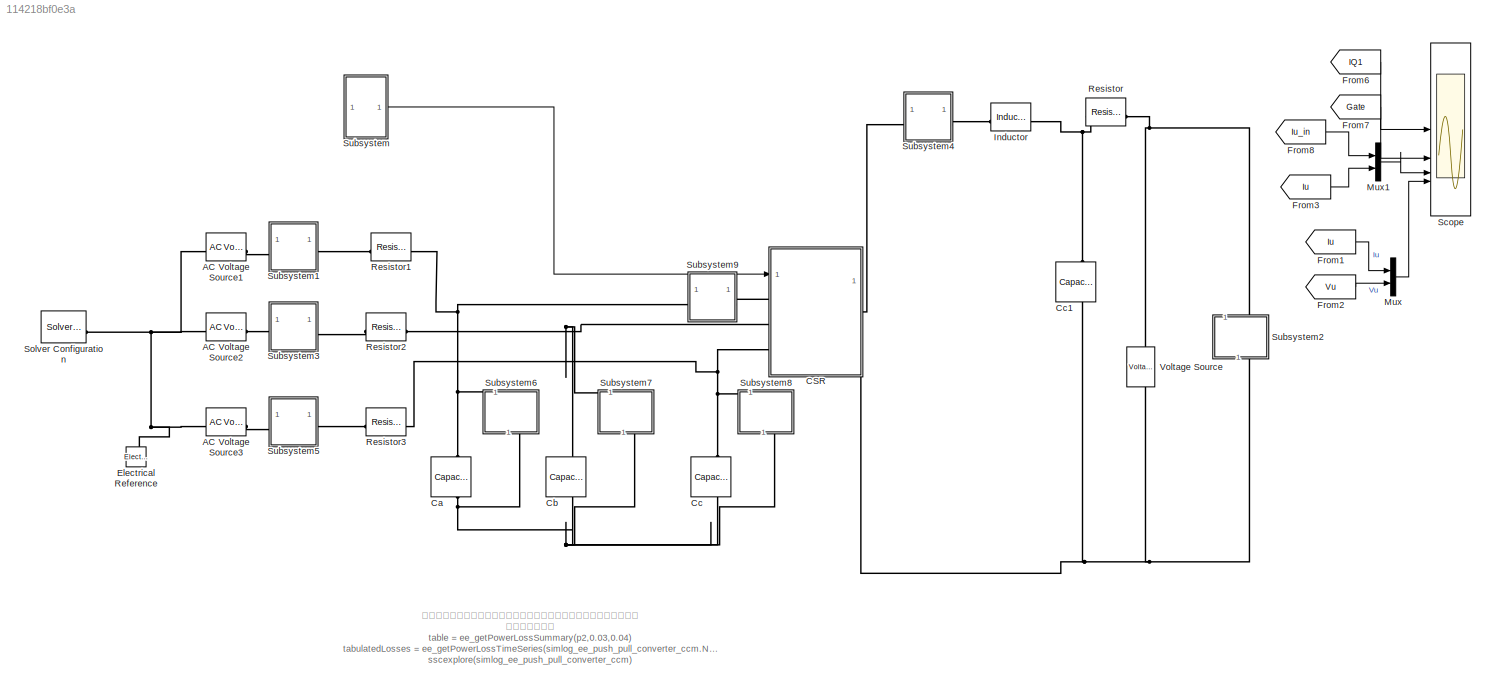
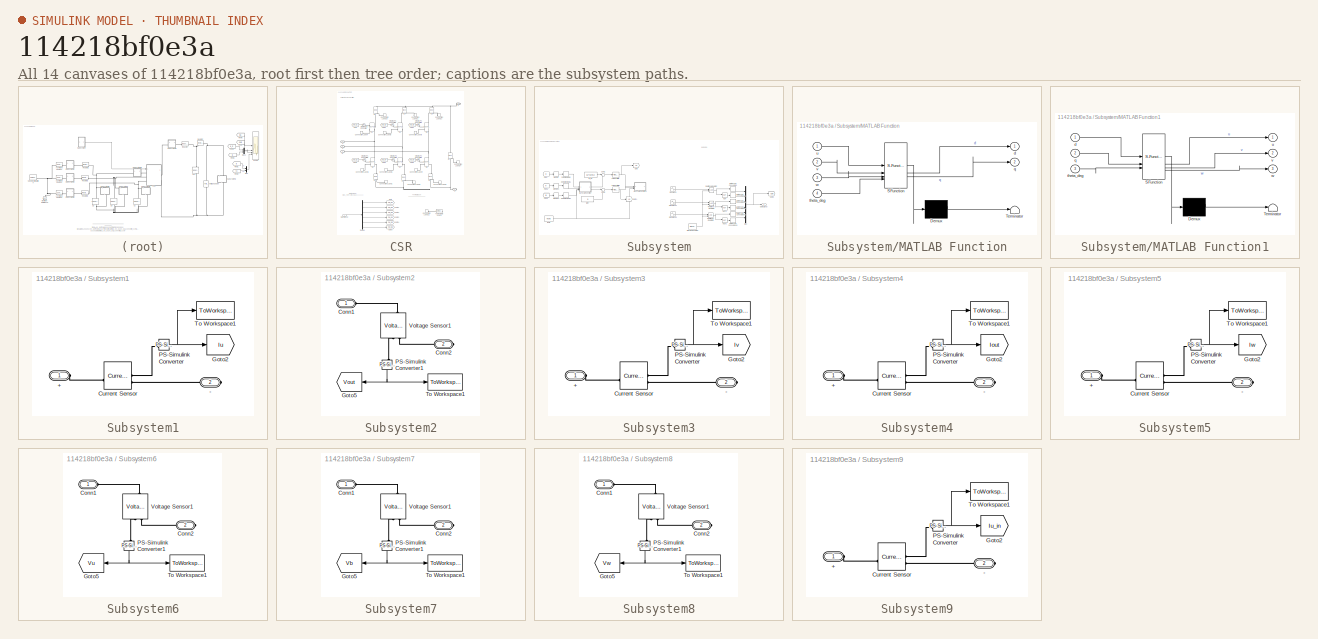
[diagram: thumbnail index - all 14 canvases of the model, root first then tree order]
MODEL slx_114218bf0e3a
KIND model
CONFIG AbsTol = 1e-3
CONFIG EnableMultiTasking = off
CONFIG FixedStep = 1e-9
CONFIG MaxStep = auto
CONFIG MinStep = auto
CONFIG RelTol = 1e-3
CONFIG SampleTimeConstraint = Unconstrained
CONFIG SolverName = ode23t
CONFIG StartTime = 0.0
CONFIG StopTime = 0.04
BLOCK [Reference] AC Voltage Source1  REF=fl_lib/Electrical/Electrical Sources/AC Voltage Source
  AttributesFormatString = %<amp> V\n%<frequency> Hz\n%<shift> deg
  SourceBlock = fl_lib/Electrical/Electrical Sources/AC Voltage Source
  SourceType = AC Voltage Source
BLOCK [Reference] AC Voltage Source2  REF=fl_lib/Electrical/Electrical Sources/AC Voltage Source
  AttributesFormatString = %<amp> V\n%<frequency> Hz\n%<shift> deg
  SourceBlock = fl_lib/Electrical/Electrical Sources/AC Voltage Source
  SourceType = AC Voltage Source
BLOCK [Reference] AC Voltage Source3  REF=fl_lib/Electrical/Electrical Sources/AC Voltage Source
  AttributesFormatString = %<amp> V\n%<frequency> Hz\n%<shift> deg
  SourceBlock = fl_lib/Electrical/Electrical Sources/AC Voltage Source
  SourceType = AC Voltage Source
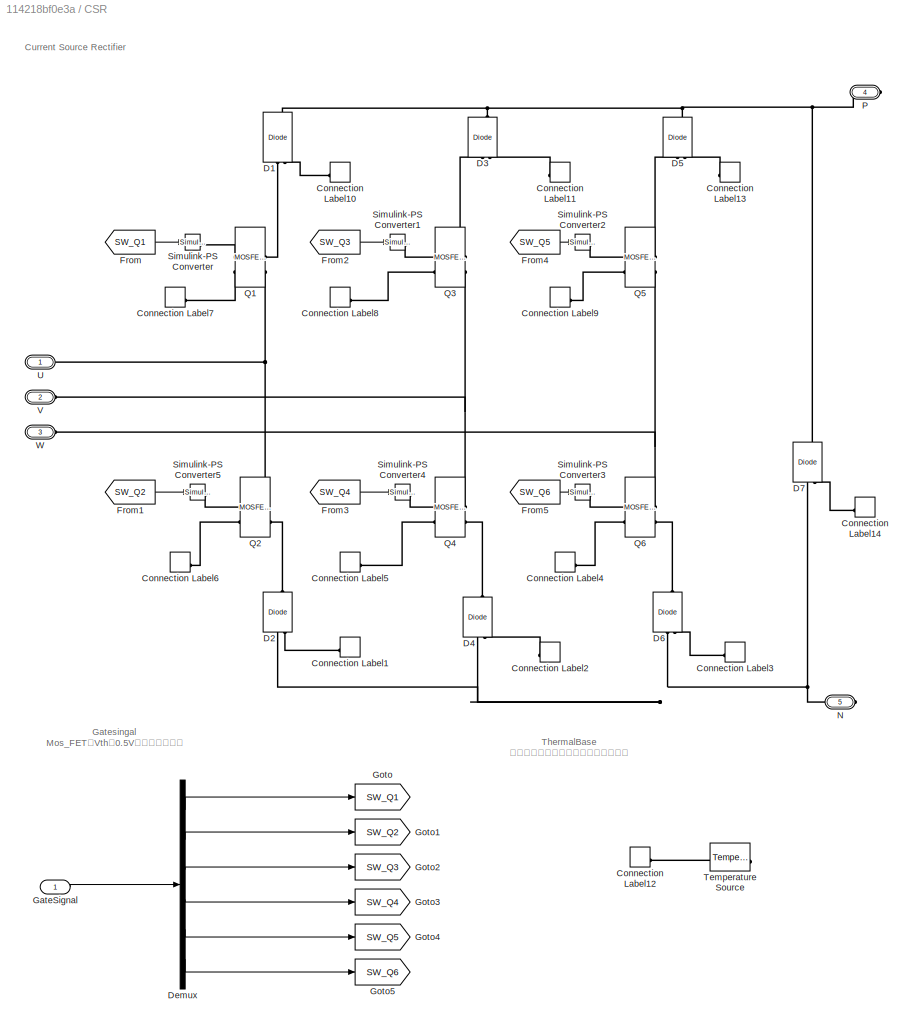
BLOCK [SubSystem] CSR
BLOCK [ConnectionLabel] CSR/Connection Label1
  Label = heatSink
BLOCK [ConnectionLabel] CSR/Connection Label10
  Label = heatSink
BLOCK [ConnectionLabel] CSR/Connection Label11
  Label = heatSink
BLOCK [ConnectionLabel] CSR/Connection Label12
  Label = heatSink
  NameLocation = top
BLOCK [ConnectionLabel] CSR/Connection Label13
  Label = heatSink
BLOCK [ConnectionLabel] CSR/Connection Label14
  Label = heatSink
BLOCK [ConnectionLabel] CSR/Connection Label2
  Label = heatSink
BLOCK [ConnectionLabel] CSR/Connection Label3
  Label = heatSink
BLOCK [ConnectionLabel] CSR/Connection Label4
  Label = heatSink
  NameLocation = top
BLOCK [ConnectionLabel] CSR/Connection Label5
  Label = heatSink
  NameLocation = top
BLOCK [ConnectionLabel] CSR/Connection Label6
  Label = heatSink
  NameLocation = top
BLOCK [ConnectionLabel] CSR/Connection Label7
  Label = heatSink
  NameLocation = top
BLOCK [ConnectionLabel] CSR/Connection Label8
  Label = heatSink
  NameLocation = top
BLOCK [ConnectionLabel] CSR/Connection Label9
  Label = heatSink
  NameLocation = top
BLOCK [Reference] CSR/D1  REF=ee_lib/Semiconductors &
Converters/Diode
  NameLocation = right
  SourceBlock = ee_lib/Semiconductors &\nConverters/Diode
  SourceType = Diode
BLOCK [Reference] CSR/D2  REF=ee_lib/Semiconductors &
Converters/Diode
  NameLocation = right
  SourceBlock = ee_lib/Semiconductors &\nConverters/Diode
  SourceType = Diode
BLOCK [Reference] CSR/D3  REF=ee_lib/Semiconductors &
Converters/Diode
  NameLocation = right
  SourceBlock = ee_lib/Semiconductors &\nConverters/Diode
  SourceType = Diode
BLOCK [Reference] CSR/D4  REF=ee_lib/Semiconductors &
Converters/Diode
  NameLocation = right
  SourceBlock = ee_lib/Semiconductors &\nConverters/Diode
  SourceType = Diode
BLOCK [Reference] CSR/D5  REF=ee_lib/Semiconductors &
Converters/Diode
  NameLocation = right
  SourceBlock = ee_lib/Semiconductors &\nConverters/Diode
  SourceType = Diode
BLOCK [Reference] CSR/D6  REF=ee_lib/Semiconductors &
Converters/Diode
  NameLocation = right
  SourceBlock = ee_lib/Semiconductors &\nConverters/Diode
  SourceType = Diode
BLOCK [Reference] CSR/D7  REF=ee_lib/Semiconductors &
Converters/Diode
  NameLocation = right
  SourceBlock = ee_lib/Semiconductors &\nConverters/Diode
  SourceType = Diode
BLOCK [Demux] CSR/Demux
  Outputs = 6
BLOCK [From] CSR/From
  GotoTag = SW_Q1
BLOCK [From] CSR/From1
  GotoTag = SW_Q2
BLOCK [From] CSR/From2
  GotoTag = SW_Q3
BLOCK [From] CSR/From3
  GotoTag = SW_Q4
BLOCK [From] CSR/From4
  GotoTag = SW_Q5
BLOCK [From] CSR/From5
  GotoTag = SW_Q6
BLOCK [Inport] CSR/GateSignal
BLOCK [Goto] CSR/Goto
  GotoTag = SW_Q1
BLOCK [Goto] CSR/Goto1
  GotoTag = SW_Q2
BLOCK [Goto] CSR/Goto2
  GotoTag = SW_Q3
BLOCK [Goto] CSR/Goto3
  GotoTag = SW_Q4
BLOCK [Goto] CSR/Goto4
  GotoTag = SW_Q5
BLOCK [Goto] CSR/Goto5
  GotoTag = SW_Q6
BLOCK [PMIOPort] CSR/N
  NameLocation = top
  Port = 5
  Side = Right
BLOCK [PMIOPort] CSR/P
  Port = 4
  Side = Right
BLOCK [Reference] CSR/Q1  REF=ee_lib/Semiconductors &
Converters/MOSFET
(Ideal,
Switching)
  SourceBlock = ee_lib/Semiconductors &\nConverters/MOSFET\n(Ideal,\nSwitching)
  SourceType = MOSFET\n(Ideal,\nSwitching)
BLOCK [Reference] CSR/Q2  REF=ee_lib/Semiconductors &
Converters/MOSFET
(Ideal,
Switching)
  SourceBlock = ee_lib/Semiconductors &\nConverters/MOSFET\n(Ideal,\nSwitching)
  SourceType = MOSFET\n(Ideal,\nSwitching)
BLOCK [Reference] CSR/Q3  REF=ee_lib/Semiconductors &
Converters/MOSFET
(Ideal,
Switching)
  SourceBlock = ee_lib/Semiconductors &\nConverters/MOSFET\n(Ideal,\nSwitching)
  SourceType = MOSFET\n(Ideal,\nSwitching)
BLOCK [Reference] CSR/Q4  REF=ee_lib/Semiconductors &
Converters/MOSFET
(Ideal,
Switching)
  SourceBlock = ee_lib/Semiconductors &\nConverters/MOSFET\n(Ideal,\nSwitching)
  SourceType = MOSFET\n(Ideal,\nSwitching)
BLOCK [Reference] CSR/Q5  REF=ee_lib/Semiconductors &
Converters/MOSFET
(Ideal,
Switching)
  SourceBlock = ee_lib/Semiconductors &\nConverters/MOSFET\n(Ideal,\nSwitching)
  SourceType = MOSFET\n(Ideal,\nSwitching)
BLOCK [Reference] CSR/Q6  REF=ee_lib/Semiconductors &
Converters/MOSFET
(Ideal,
Switching)
  SourceBlock = ee_lib/Semiconductors &\nConverters/MOSFET\n(Ideal,\nSwitching)
  SourceType = MOSFET\n(Ideal,\nSwitching)
BLOCK [Reference] CSR/Simulink-PS Converter  REF=nesl_utility/Simulink-PS
Converter
  SourceBlock = nesl_utility/Simulink-PS\nConverter
  SourceType = Simulink-PS\nConverter
BLOCK [Reference] CSR/Simulink-PS Converter1  REF=nesl_utility/Simulink-PS
Converter
  SourceBlock = nesl_utility/Simulink-PS\nConverter
  SourceType = Simulink-PS\nConverter
BLOCK [Reference] CSR/Simulink-PS Converter2  REF=nesl_utility/Simulink-PS
Converter
  SourceBlock = nesl_utility/Simulink-PS\nConverter
  SourceType = Simulink-PS\nConverter
BLOCK [Reference] CSR/Simulink-PS Converter3  REF=nesl_utility/Simulink-PS
Converter
  SourceBlock = nesl_utility/Simulink-PS\nConverter
  SourceType = Simulink-PS\nConverter
BLOCK [Reference] CSR/Simulink-PS Converter4  REF=nesl_utility/Simulink-PS
Converter
  SourceBlock = nesl_utility/Simulink-PS\nConverter
  SourceType = Simulink-PS\nConverter
BLOCK [Reference] CSR/Simulink-PS Converter5  REF=nesl_utility/Simulink-PS
Converter
  SourceBlock = nesl_utility/Simulink-PS\nConverter
  SourceType = Simulink-PS\nConverter
BLOCK [Reference] CSR/Temperature Source  REF=fl_lib/Thermal/Thermal Sources/Temperature Source
  AttributesFormatString = %<temperature> degC
  NameLocation = top
  SourceBlock = fl_lib/Thermal/Thermal Sources/Temperature Source
  SourceType = Temperature Source
BLOCK [PMIOPort] CSR/U
  Side = Left
BLOCK [PMIOPort] CSR/V
  Port = 2
  Side = Left
BLOCK [PMIOPort] CSR/W
  Port = 3
  Side = Left
BLOCK [Reference] Ca  REF=fl_lib/Electrical/Electrical Elements/Capacitor
  AttributesFormatString = %<c> F
  NameLocation = left
  SourceBlock = fl_lib/Electrical/Electrical Elements/Capacitor
  SourceType = Capacitor
BLOCK [Reference] Cb  REF=fl_lib/Electrical/Electrical Elements/Capacitor
  AttributesFormatString = %<c> F
  NameLocation = left
  SourceBlock = fl_lib/Electrical/Electrical Elements/Capacitor
  SourceType = Capacitor
BLOCK [Reference] Cc  REF=fl_lib/Electrical/Electrical Elements/Capacitor
  AttributesFormatString = %<c> F
  NameLocation = left
  SourceBlock = fl_lib/Electrical/Electrical Elements/Capacitor
  SourceType = Capacitor
BLOCK [Reference] Cc1  REF=fl_lib/Electrical/Electrical Elements/Capacitor
  AttributesFormatString = %<c> F
  NameLocation = left
  SourceBlock = fl_lib/Electrical/Electrical Elements/Capacitor
  SourceType = Capacitor
BLOCK [Reference] Electrical Reference  REF=fl_lib/Electrical/Electrical Elements/Electrical Reference
  NameLocation = right
  SourceBlock = fl_lib/Electrical/Electrical Elements/Electrical Reference
  SourceType = Electrical Reference
BLOCK [From] From1
  GotoTag = Iu
  TagVisibility = global
BLOCK [From] From2
  GotoTag = Vu
  TagVisibility = global
BLOCK [From] From3
  GotoTag = Iu
  TagVisibility = global
BLOCK [From] From6
  GotoTag = IQ1
BLOCK [From] From7
  GotoTag = Gate
  TagVisibility = global
BLOCK [From] From8
  GotoTag = Iu_in
  TagVisibility = global
BLOCK [Reference] Inductor  REF=ee_lib/Passive/Inductor
  AttributesFormatString = %<l> H
  SourceBlock = ee_lib/Passive/Inductor
  SourceType = Inductor
BLOCK [Mux] Mux
  DisplayOption = bar
  Inputs = 2
BLOCK [Mux] Mux1
  DisplayOption = bar
  Inputs = 2
BLOCK [Reference] Resistor  REF=fl_lib/Electrical/Electrical Elements/Resistor
  SourceBlock = fl_lib/Electrical/Electrical Elements/Resistor
  SourceType = Resistor
BLOCK [Reference] Resistor1  REF=fl_lib/Electrical/Electrical Elements/Resistor
  SourceBlock = fl_lib/Electrical/Electrical Elements/Resistor
  SourceType = Resistor
BLOCK [Reference] Resistor2  REF=fl_lib/Electrical/Electrical Elements/Resistor
  SourceBlock = fl_lib/Electrical/Electrical Elements/Resistor
  SourceType = Resistor
BLOCK [Reference] Resistor3  REF=fl_lib/Electrical/Electrical Elements/Resistor
  SourceBlock = fl_lib/Electrical/Electrical Elements/Resistor
  SourceType = Resistor
BLOCK [Scope] Scope
  Floating = off
  NumInputPorts = 4
  ScopeSpecificationString = Simulink.scopes.TimeScopeBlockCfg('CurrentConfiguration', extmgr.ConfigurationSet(extmgr.Configuration('Core','General UI',true),extmgr.Configuration('Core','Source UI',true),extmgr.Configuration('Sources','WiredSimulink',true),extmgr.Configuration('Visuals','Time Domain',true,'SerializedDisplays',{struct('MinYLimReal','-1.00000','MaxYLimReal','1.00000','YLabelReal','','MinYLimMag','0.00000','MaxY...<+3587ch>
BLOCK [Reference] Solver Configuration  REF=nesl_utility/Solver
Configuration
  SourceBlock = nesl_utility/Solver\nConfiguration
  SourceType = Solver\nConfiguration
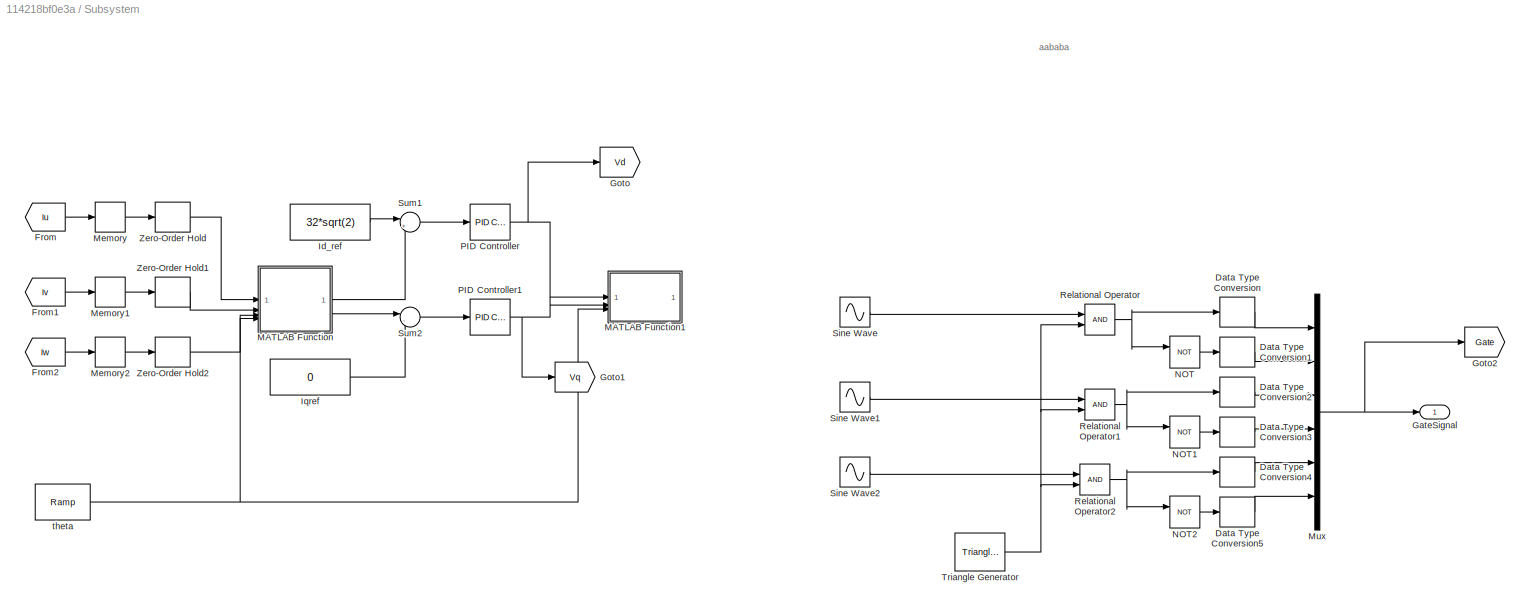
BLOCK [SubSystem] Subsystem
BLOCK [DataTypeConversion] Subsystem/Data Type Conversion
  RndMeth = Floor
  SaturateOnIntegerOverflow = off
BLOCK [DataTypeConversion] Subsystem/Data Type Conversion1
  RndMeth = Floor
  SaturateOnIntegerOverflow = off
BLOCK [DataTypeConversion] Subsystem/Data Type Conversion2
  RndMeth = Floor
  SaturateOnIntegerOverflow = off
BLOCK [DataTypeConversion] Subsystem/Data Type Conversion3
  RndMeth = Floor
  SaturateOnIntegerOverflow = off
BLOCK [DataTypeConversion] Subsystem/Data Type Conversion4
  RndMeth = Floor
  SaturateOnIntegerOverflow = off
BLOCK [DataTypeConversion] Subsystem/Data Type Conversion5
  RndMeth = Floor
  SaturateOnIntegerOverflow = off
BLOCK [From] Subsystem/From
  Commented = on
  GotoTag = Iu
  TagVisibility = global
BLOCK [From] Subsystem/From1
  Commented = on
  GotoTag = Iv
  TagVisibility = global
BLOCK [From] Subsystem/From2
  Commented = on
  GotoTag = Iw
  TagVisibility = global
BLOCK [Outport] Subsystem/GateSignal
BLOCK [Goto] Subsystem/Goto
  Commented = on
  GotoTag = Vd
  TagVisibility = global
BLOCK [Goto] Subsystem/Goto1
  Commented = on
  GotoTag = Vq
  TagVisibility = global
BLOCK [Goto] Subsystem/Goto2
  GotoTag = Gate
  TagVisibility = global
BLOCK [Constant] Subsystem/Id_ref
  Commented = on
  Value = 32*sqrt(2)
BLOCK [Constant] Subsystem/Iqref
  Commented = on
  Value = 0
BLOCK [SubSystem] Subsystem/MATLAB Function
  Commented = on
  ErrorFcn = Stateflow.Translate.translate
  LibrarySourceBlock = simulink/User-Defined\nFunctions/MATLAB Function
  PermitHierarchicalResolution = ExplicitOnly
  SFBlockType = MATLAB Function
  TreatAsAtomicUnit = on
BLOCK [Demux] Subsystem/MATLAB Function/ Demux 
  Outputs = 1
BLOCK [S-Function] Subsystem/MATLAB Function/ SFunction 
  EnableBusSupport = on
  FunctionName = sf_sfun
  PortCounts = [4 3]
  SFcnIsStateOwnerBlock = off
  SFunctionDeploymentMode = off
  Tag = Stateflow S-Function 2
BLOCK [Terminator] Subsystem/MATLAB Function/ Terminator 
BLOCK [Outport] Subsystem/MATLAB Function/d
BLOCK [Outport] Subsystem/MATLAB Function/q
  Port = 2
BLOCK [Inport] Subsystem/MATLAB Function/theta_deg
  Port = 4
BLOCK [Inport] Subsystem/MATLAB Function/u
BLOCK [Inport] Subsystem/MATLAB Function/v
  Port = 2
BLOCK [Inport] Subsystem/MATLAB Function/w
  Port = 3
BLOCK [SubSystem] Subsystem/MATLAB Function1
  Commented = on
  ErrorFcn = Stateflow.Translate.translate
  LibrarySourceBlock = simulink/User-Defined\nFunctions/MATLAB Function
  PermitHierarchicalResolution = ExplicitOnly
  SFBlockType = MATLAB Function
  TreatAsAtomicUnit = on
BLOCK [Demux] Subsystem/MATLAB Function1/ Demux 
  Outputs = 1
BLOCK [S-Function] Subsystem/MATLAB Function1/ SFunction 
  EnableBusSupport = on
  FunctionName = sf_sfun
  PortCounts = [3 4]
  SFcnIsStateOwnerBlock = off
  SFunctionDeploymentMode = off
  Tag = Stateflow S-Function 1
BLOCK [Terminator] Subsystem/MATLAB Function1/ Terminator 
BLOCK [Inport] Subsystem/MATLAB Function1/d
BLOCK [Inport] Subsystem/MATLAB Function1/q
  Port = 2
BLOCK [Inport] Subsystem/MATLAB Function1/theta_deg
  Port = 3
BLOCK [Outport] Subsystem/MATLAB Function1/u
BLOCK [Outport] Subsystem/MATLAB Function1/v
  Port = 2
BLOCK [Outport] Subsystem/MATLAB Function1/w
  Port = 3
BLOCK [Memory] Subsystem/Memory
  Commented = on
BLOCK [Memory] Subsystem/Memory1
  Commented = on
BLOCK [Memory] Subsystem/Memory2
  Commented = on
BLOCK [Mux] Subsystem/Mux
  DisplayOption = bar
  Inputs = 6
BLOCK [Logic] Subsystem/NOT
  AllPortsSameDT = off
  IconShape = distinctive
  Operator = NOT
  OutDataTypeStr = boolean
BLOCK [Logic] Subsystem/NOT1
  AllPortsSameDT = off
  IconShape = distinctive
  Operator = NOT
  OutDataTypeStr = boolean
BLOCK [Logic] Subsystem/NOT2
  AllPortsSameDT = off
  IconShape = distinctive
  Operator = NOT
  OutDataTypeStr = boolean
BLOCK [Reference] Subsystem/PID Controller  REF=slpidlib/PID Controller
  Commented = on
  LibrarySourceBlock = simulink/Continuous/PID Controller
  SourceBlock = slpidlib/PID Controller
  SourceType = PID 1dof
BLOCK [Reference] Subsystem/PID Controller1  REF=slpidlib/PID Controller
  Commented = on
  LibrarySourceBlock = simulink/Continuous/PID Controller
  SourceBlock = slpidlib/PID Controller
  SourceType = PID 1dof
BLOCK [RelationalOperator] Subsystem/Relational Operator
  InputSameDT = off
  OutDataTypeStr = boolean
  RndMeth = Simplest
BLOCK [RelationalOperator] Subsystem/Relational Operator1
  InputSameDT = off
  OutDataTypeStr = boolean
  RndMeth = Simplest
BLOCK [RelationalOperator] Subsystem/Relational Operator2
  InputSameDT = off
  OutDataTypeStr = boolean
  RndMeth = Simplest
BLOCK [Sin] Subsystem/Sine Wave
  Amplitude = 0.8
  Frequency = 50*2*pi
  Phase = pi/2
  SampleTime = 0
BLOCK [Sin] Subsystem/Sine Wave1
  Amplitude = 0.8
  Frequency = 50*2*pi
  Phase = 2/3*pi+pi/2
  SampleTime = 0
BLOCK [Sin] Subsystem/Sine Wave2
  Amplitude = 0.8
  Frequency = 50*2*pi
  Phase = 4/3*pi+pi/2
  SampleTime = 0
BLOCK [Sum] Subsystem/Sum1
  Commented = on
  Inputs = |+-
BLOCK [Sum] Subsystem/Sum2
  Commented = on
  Inputs = |-+
  NameLocation = top
BLOCK [Reference] Subsystem/Triangle Generator  REF=spsTriangleGeneratorLib/Triangle
Generator
  LibrarySourceBlock = sps_lib/Sources/Signal Generator Sources/Triangle\nGenerator
  SourceBlock = spsTriangleGeneratorLib/Triangle\nGenerator
  SourceType = Triangle Generator
BLOCK [ZeroOrderHold] Subsystem/Zero-Order Hold
  AttributesFormatString = %<SampleTime> sec
  Commented = on
  SampleTime = 1/100e3
BLOCK [ZeroOrderHold] Subsystem/Zero-Order Hold1
  AttributesFormatString = %<SampleTime> sec
  Commented = on
  SampleTime = 1/100e3
BLOCK [ZeroOrderHold] Subsystem/Zero-Order Hold2
  AttributesFormatString = %<SampleTime> sec
  Commented = on
  SampleTime = 1/100e3
BLOCK [Reference] Subsystem/theta  REF=simulink/Sources/Ramp
  Commented = on
  SourceBlock = simulink/Sources/Ramp
  SourceType = Ramp
BLOCK [SubSystem] Subsystem1
  AttributesFormatString = %<VariableName>
BLOCK [PMIOPort] Subsystem1/+
  Side = Left
BLOCK [PMIOPort] Subsystem1/-
  Port = 2
  Side = Right
BLOCK [Reference] Subsystem1/Current Sensor  REF=fl_lib/Electrical/Electrical Sensors/Current Sensor
  SourceBlock = fl_lib/Electrical/Electrical Sensors/Current Sensor
  SourceType = Current Sensor
BLOCK [Goto] Subsystem1/Goto2
  GotoTag = Iu
  TagVisibility = global
BLOCK [Reference] Subsystem1/PS-Simulink Converter  REF=nesl_utility/PS-Simulink
Converter
  SourceBlock = nesl_utility/PS-Simulink\nConverter
  SourceType = PS-Simulink\nConverter
BLOCK [ToWorkspace] Subsystem1/To Workspace1
  FixptAsFi = on
  MaxDataPoints = inf
  SampleTime = SampleTime
  VariableName = Iu
BLOCK [SubSystem] Subsystem2
  AttributesFormatString = %<VariableName>
  NameLocation = left
BLOCK [PMIOPort] Subsystem2/Conn1
  Side = Left
BLOCK [PMIOPort] Subsystem2/Conn2
  Port = 2
  Side = Right
BLOCK [Goto] Subsystem2/Goto5
  GotoTag = Vout
  NameLocation = top
  TagVisibility = global
BLOCK [Reference] Subsystem2/PS-Simulink Converter1  REF=nesl_utility/PS-Simulink
Converter
  NameLocation = left
  SourceBlock = nesl_utility/PS-Simulink\nConverter
  SourceType = PS-Simulink\nConverter
BLOCK [ToWorkspace] Subsystem2/To Workspace1
  FixptAsFi = on
  MaxDataPoints = inf
  SampleTime = SampleTime
  VariableName = Vout
BLOCK [Reference] Subsystem2/Voltage Sensor1  REF=fl_lib/Electrical/Electrical Sensors/Voltage Sensor
  NameLocation = right
  SourceBlock = fl_lib/Electrical/Electrical Sensors/Voltage Sensor
  SourceType = Voltage Sensor
BLOCK [SubSystem] Subsystem3
  AttributesFormatString = %<VariableName>
BLOCK [PMIOPort] Subsystem3/+
  Side = Left
BLOCK [PMIOPort] Subsystem3/-
  Port = 2
  Side = Right
BLOCK [Reference] Subsystem3/Current Sensor  REF=fl_lib/Electrical/Electrical Sensors/Current Sensor
  SourceBlock = fl_lib/Electrical/Electrical Sensors/Current Sensor
  SourceType = Current Sensor
BLOCK [Goto] Subsystem3/Goto2
  GotoTag = Iv
  TagVisibility = global
BLOCK [Reference] Subsystem3/PS-Simulink Converter  REF=nesl_utility/PS-Simulink
Converter
  SourceBlock = nesl_utility/PS-Simulink\nConverter
  SourceType = PS-Simulink\nConverter
BLOCK [ToWorkspace] Subsystem3/To Workspace1
  FixptAsFi = on
  MaxDataPoints = inf
  SampleTime = SampleTime
  VariableName = Iv
BLOCK [SubSystem] Subsystem4
  AttributesFormatString = %<VariableName>
BLOCK [PMIOPort] Subsystem4/+
  Side = Left
BLOCK [PMIOPort] Subsystem4/-
  Port = 2
  Side = Right
BLOCK [Reference] Subsystem4/Current Sensor  REF=fl_lib/Electrical/Electrical Sensors/Current Sensor
  SourceBlock = fl_lib/Electrical/Electrical Sensors/Current Sensor
  SourceType = Current Sensor
BLOCK [Goto] Subsystem4/Goto2
  GotoTag = Iout
  TagVisibility = global
BLOCK [Reference] Subsystem4/PS-Simulink Converter  REF=nesl_utility/PS-Simulink
Converter
  SourceBlock = nesl_utility/PS-Simulink\nConverter
  SourceType = PS-Simulink\nConverter
BLOCK [ToWorkspace] Subsystem4/To Workspace1
  FixptAsFi = on
  MaxDataPoints = inf
  SampleTime = SampleTime
  VariableName = Iout
BLOCK [SubSystem] Subsystem5
  AttributesFormatString = %<VariableName>
BLOCK [PMIOPort] Subsystem5/+
  Side = Left
BLOCK [PMIOPort] Subsystem5/-
  Port = 2
  Side = Right
BLOCK [Reference] Subsystem5/Current Sensor  REF=fl_lib/Electrical/Electrical Sensors/Current Sensor
  SourceBlock = fl_lib/Electrical/Electrical Sensors/Current Sensor
  SourceType = Current Sensor
BLOCK [Goto] Subsystem5/Goto2
  GotoTag = Iw
  TagVisibility = global
BLOCK [Reference] Subsystem5/PS-Simulink Converter  REF=nesl_utility/PS-Simulink
Converter
  SourceBlock = nesl_utility/PS-Simulink\nConverter
  SourceType = PS-Simulink\nConverter
BLOCK [ToWorkspace] Subsystem5/To Workspace1
  FixptAsFi = on
  MaxDataPoints = inf
  SampleTime = SampleTime
  VariableName = Iw
BLOCK [SubSystem] Subsystem6
  AttributesFormatString = %<VariableName>
  NameLocation = left
BLOCK [PMIOPort] Subsystem6/Conn1
  Side = Left
BLOCK [PMIOPort] Subsystem6/Conn2
  Port = 2
  Side = Right
BLOCK [Goto] Subsystem6/Goto5
  GotoTag = Vu
  NameLocation = top
  TagVisibility = global
BLOCK [Reference] Subsystem6/PS-Simulink Converter1  REF=nesl_utility/PS-Simulink
Converter
  NameLocation = left
  SourceBlock = nesl_utility/PS-Simulink\nConverter
  SourceType = PS-Simulink\nConverter
BLOCK [ToWorkspace] Subsystem6/To Workspace1
  FixptAsFi = on
  MaxDataPoints = inf
  SampleTime = SampleTime
  VariableName = Vu
BLOCK [Reference] Subsystem6/Voltage Sensor1  REF=fl_lib/Electrical/Electrical Sensors/Voltage Sensor
  NameLocation = right
  SourceBlock = fl_lib/Electrical/Electrical Sensors/Voltage Sensor
  SourceType = Voltage Sensor
BLOCK [SubSystem] Subsystem7
  AttributesFormatString = %<VariableName>
  NameLocation = left
BLOCK [PMIOPort] Subsystem7/Conn1
  Side = Left
BLOCK [PMIOPort] Subsystem7/Conn2
  Port = 2
  Side = Right
BLOCK [Goto] Subsystem7/Goto5
  GotoTag = Vb
  NameLocation = top
  TagVisibility = global
BLOCK [Reference] Subsystem7/PS-Simulink Converter1  REF=nesl_utility/PS-Simulink
Converter
  NameLocation = left
  SourceBlock = nesl_utility/PS-Simulink\nConverter
  SourceType = PS-Simulink\nConverter
BLOCK [ToWorkspace] Subsystem7/To Workspace1
  FixptAsFi = on
  MaxDataPoints = inf
  SampleTime = SampleTime
  VariableName = Vb
BLOCK [Reference] Subsystem7/Voltage Sensor1  REF=fl_lib/Electrical/Electrical Sensors/Voltage Sensor
  NameLocation = right
  SourceBlock = fl_lib/Electrical/Electrical Sensors/Voltage Sensor
  SourceType = Voltage Sensor
BLOCK [SubSystem] Subsystem8
  AttributesFormatString = %<VariableName>
  NameLocation = left
BLOCK [PMIOPort] Subsystem8/Conn1
  Side = Left
BLOCK [PMIOPort] Subsystem8/Conn2
  Port = 2
  Side = Right
BLOCK [Goto] Subsystem8/Goto5
  GotoTag = Vw
  NameLocation = top
  TagVisibility = global
BLOCK [Reference] Subsystem8/PS-Simulink Converter1  REF=nesl_utility/PS-Simulink
Converter
  NameLocation = left
  SourceBlock = nesl_utility/PS-Simulink\nConverter
  SourceType = PS-Simulink\nConverter
BLOCK [ToWorkspace] Subsystem8/To Workspace1
  FixptAsFi = on
  MaxDataPoints = inf
  SampleTime = SampleTime
  VariableName = Vw
BLOCK [Reference] Subsystem8/Voltage Sensor1  REF=fl_lib/Electrical/Electrical Sensors/Voltage Sensor
  NameLocation = right
  SourceBlock = fl_lib/Electrical/Electrical Sensors/Voltage Sensor
  SourceType = Voltage Sensor
BLOCK [SubSystem] Subsystem9
  AttributesFormatString = %<VariableName>
BLOCK [PMIOPort] Subsystem9/+
  Side = Left
BLOCK [PMIOPort] Subsystem9/-
  Port = 2
  Side = Right
BLOCK [Reference] Subsystem9/Current Sensor  REF=fl_lib/Electrical/Electrical Sensors/Current Sensor
  SourceBlock = fl_lib/Electrical/Electrical Sensors/Current Sensor
  SourceType = Current Sensor
BLOCK [Goto] Subsystem9/Goto2
  GotoTag = Iu_in
  TagVisibility = global
BLOCK [Reference] Subsystem9/PS-Simulink Converter  REF=nesl_utility/PS-Simulink
Converter
  SourceBlock = nesl_utility/PS-Simulink\nConverter
  SourceType = PS-Simulink\nConverter
BLOCK [ToWorkspace] Subsystem9/To Workspace1
  FixptAsFi = on
  MaxDataPoints = inf
  SampleTime = SampleTime
  VariableName = Iu_in
BLOCK [Reference] Voltage Source  REF=ee_lib/Sources/Voltage Source
  AttributesFormatString = %<dc_voltage>  V
  NameLocation = right
  SourceBlock = ee_lib/Sources/Voltage Source
  SourceType = Voltage Source
ANNOTATION (root): 問題：計算時間の低減、損失計算情報をどこまで保持するか・・・・ 主要関数メモ： table = ee_getPowerLossSummary(p2,0.03,0.04) tabulatedLosses = ee_getPowerLossTimeSeries(simlog_ee_push_pull_converter_ccm.N_Channel_MOSFET_1.mosfet_equation) sscexplore(simlog_ee_push_pull_converter_ccm)
ANNOTATION CSR: Current Source Rectifier
ANNOTATION CSR: Gatesingal Mos_FETのVthを0.5Vに設定して使う
ANNOTATION CSR: ThermalBase 温度のベース、２５℃固定として使う
ANNOTATION Subsystem: aababa
LINE CSR/Demux:1 -> CSR/Goto:1
LINE CSR/Demux:2 -> CSR/Goto1:1
LINE CSR/Demux:3 -> CSR/Goto2:1
LINE CSR/Demux:4 -> CSR/Goto3:1
LINE CSR/Demux:5 -> CSR/Goto4:1
LINE CSR/Demux:6 -> CSR/Goto5:1
LINE CSR/From1:1 -> CSR/Simulink-PS Converter5:1
LINE CSR/From2:1 -> CSR/Simulink-PS Converter1:1
LINE CSR/From3:1 -> CSR/Simulink-PS Converter4:1
LINE CSR/From4:1 -> CSR/Simulink-PS Converter2:1
LINE CSR/From5:1 -> CSR/Simulink-PS Converter3:1
LINE CSR/From:1 -> CSR/Simulink-PS Converter:1
LINE CSR/GateSignal:1 -> CSR/Demux:1
LINE From1:1 -> Mux:1
LINE From2:1 -> Mux:2
LINE From3:1 -> Mux1:2
LINE From6:1 -> Scope:1
LINE From7:1 -> Scope:2
LINE From8:1 -> Mux1:1
LINE Mux1:1 -> Scope:3
LINE Mux:1 -> Scope:4
LINE Subsystem/Data Type Conversion1:1 -> Subsystem/Mux:2
LINE Subsystem/Data Type Conversion2:1 -> Subsystem/Mux:3
LINE Subsystem/Data Type Conversion3:1 -> Subsystem/Mux:4
LINE Subsystem/Data Type Conversion4:1 -> Subsystem/Mux:5
LINE Subsystem/Data Type Conversion5:1 -> Subsystem/Mux:6
LINE Subsystem/Data Type Conversion:1 -> Subsystem/Mux:1
LINE Subsystem/From1:1 -> Subsystem/Memory1:1
LINE Subsystem/From2:1 -> Subsystem/Memory2:1
LINE Subsystem/From:1 -> Subsystem/Memory:1
LINE Subsystem/Id_ref:1 -> Subsystem/Sum1:1
LINE Subsystem/Iqref:1 -> Subsystem/Sum2:2
LINE Subsystem/MATLAB Function:1 -> Subsystem/Sum1:2
LINE Subsystem/MATLAB Function:2 -> Subsystem/Sum2:1
LINE Subsystem/Memory1:1 -> Subsystem/Zero-Order Hold1:1
LINE Subsystem/Memory2:1 -> Subsystem/Zero-Order Hold2:1
LINE Subsystem/Memory:1 -> Subsystem/Zero-Order Hold:1
NET Subsystem/Mux:1 -> Subsystem/GateSignal:1, Subsystem/Goto2:1
LINE Subsystem/NOT1:1 -> Subsystem/Data Type Conversion3:1
LINE Subsystem/NOT2:1 -> Subsystem/Data Type Conversion5:1
LINE Subsystem/NOT:1 -> Subsystem/Data Type Conversion1:1
NET Subsystem/PID Controller1:1 -> Subsystem/Goto1:1, Subsystem/MATLAB Function1:2
NET Subsystem/PID Controller:1 -> Subsystem/Goto:1, Subsystem/MATLAB Function1:1
NET Subsystem/Relational Operator1:1 -> Subsystem/Data Type Conversion2:1, Subsystem/NOT1:1
NET Subsystem/Relational Operator2:1 -> Subsystem/Data Type Conversion4:1, Subsystem/NOT2:1
NET Subsystem/Relational Operator:1 -> Subsystem/Data Type Conversion:1, Subsystem/NOT:1
LINE Subsystem/Sine Wave1:1 -> Subsystem/Relational Operator1:1
LINE Subsystem/Sine Wave2:1 -> Subsystem/Relational Operator2:1
LINE Subsystem/Sine Wave:1 -> Subsystem/Relational Operator:1
LINE Subsystem/Sum1:1 -> Subsystem/PID Controller:1
LINE Subsystem/Sum2:1 -> Subsystem/PID Controller1:1
NET Subsystem/Triangle Generator:1 -> Subsystem/Relational Operator1:2, Subsystem/Relational Operator2:2, Subsystem/Relational Operator:2
LINE Subsystem/Zero-Order Hold1:1 -> Subsystem/MATLAB Function:2
LINE Subsystem/Zero-Order Hold2:1 -> Subsystem/MATLAB Function:3
LINE Subsystem/Zero-Order Hold:1 -> Subsystem/MATLAB Function:1
NET Subsystem/theta:1 -> Subsystem/MATLAB Function1:3, Subsystem/MATLAB Function:4
NET Subsystem1/PS-Simulink Converter:1 -> Subsystem1/Goto2:1, Subsystem1/To Workspace1:1
NET Subsystem2/PS-Simulink Converter1:1 -> Subsystem2/Goto5:1, Subsystem2/To Workspace1:1
NET Subsystem3/PS-Simulink Converter:1 -> Subsystem3/Goto2:1, Subsystem3/To Workspace1:1
NET Subsystem4/PS-Simulink Converter:1 -> Subsystem4/Goto2:1, Subsystem4/To Workspace1:1
NET Subsystem5/PS-Simulink Converter:1 -> Subsystem5/Goto2:1, Subsystem5/To Workspace1:1
NET Subsystem6/PS-Simulink Converter1:1 -> Subsystem6/Goto5:1, Subsystem6/To Workspace1:1
NET Subsystem7/PS-Simulink Converter1:1 -> Subsystem7/Goto5:1, Subsystem7/To Workspace1:1
NET Subsystem8/PS-Simulink Converter1:1 -> Subsystem8/Goto5:1, Subsystem8/To Workspace1:1
NET Subsystem9/PS-Simulink Converter:1 -> Subsystem9/Goto2:1, Subsystem9/To Workspace1:1
LINE Subsystem:1 -> CSR:1
PLINE AC Voltage Source1:LConn1 -- Subsystem1:LConn1
PNET net1: AC Voltage Source1:RConn1 -- AC Voltage Source2:RConn1 -- AC Voltage Source3:RConn1 -- Electrical Reference:LConn1 -- Solver Configuration:RConn1
PLINE AC Voltage Source2:LConn1 -- Subsystem3:LConn1
PLINE AC Voltage Source3:LConn1 -- Subsystem5:LConn1
PLINE CSR/Connection Label10:LConn1 -- CSR/D1:LConn2
PLINE CSR/Connection Label11:LConn1 -- CSR/D3:LConn2
PLINE CSR/Connection Label12:LConn1 -- CSR/Temperature Source:LConn1
PLINE CSR/Connection Label13:LConn1 -- CSR/D5:LConn2
PLINE CSR/Connection Label14:LConn1 -- CSR/D7:LConn2
PLINE CSR/Connection Label1:LConn1 -- CSR/D2:LConn2
PLINE CSR/Connection Label2:LConn1 -- CSR/D4:LConn2
PLINE CSR/Connection Label3:LConn1 -- CSR/D6:LConn2
PLINE CSR/Connection Label4:LConn1 -- CSR/Q6:LConn2
PLINE CSR/Connection Label5:LConn1 -- CSR/Q4:LConn2
PLINE CSR/Connection Label6:LConn1 -- CSR/Q2:LConn2
PLINE CSR/Connection Label7:LConn1 -- CSR/Q1:LConn2
PLINE CSR/Connection Label8:LConn1 -- CSR/Q3:LConn2
PLINE CSR/Connection Label9:LConn1 -- CSR/Q5:LConn2
PLINE CSR/D1:LConn1 -- CSR/Q1:RConn1
PNET net2: CSR/D1:RConn1 -- CSR/D3:RConn1 -- CSR/D5:RConn1 -- CSR/D7:RConn1 -- CSR/P:RConn1
PNET net3: CSR/D2:LConn1 -- CSR/D4:LConn1 -- CSR/D6:LConn1 -- CSR/D7:LConn1 -- CSR/N:RConn1
PLINE CSR/D2:RConn1 -- CSR/Q2:RConn2
PLINE CSR/D3:LConn1 -- CSR/Q3:RConn1
PLINE CSR/D4:RConn1 -- CSR/Q4:RConn2
PLINE CSR/D5:LConn1 -- CSR/Q5:RConn1
PLINE CSR/D6:RConn1 -- CSR/Q6:RConn2
PLINE CSR/Q1:LConn1 -- CSR/Simulink-PS Converter:RConn1
PNET net4: CSR/Q1:RConn2 -- CSR/Q2:RConn1 -- CSR/U:RConn1
PLINE CSR/Q2:LConn1 -- CSR/Simulink-PS Converter5:RConn1
PLINE CSR/Q3:LConn1 -- CSR/Simulink-PS Converter1:RConn1
PNET net5: CSR/Q3:RConn2 -- CSR/Q4:RConn1 -- CSR/V:RConn1
PLINE CSR/Q4:LConn1 -- CSR/Simulink-PS Converter4:RConn1
PLINE CSR/Q5:LConn1 -- CSR/Simulink-PS Converter2:RConn1
PNET net6: CSR/Q5:RConn2 -- CSR/Q6:RConn1 -- CSR/W:RConn1
PLINE CSR/Q6:LConn1 -- CSR/Simulink-PS Converter3:RConn1
PLINE CSR:LConn1 -- Subsystem9:RConn1
PNET net7: CSR:LConn2 -- Cb:LConn1 -- Resistor2:RConn1 -- Subsystem7:LConn1
PNET net8: CSR:LConn3 -- Cc:LConn1 -- Resistor3:RConn1 -- Subsystem8:LConn1
PLINE CSR:RConn1 -- Subsystem4:LConn1
PNET net9: CSR:RConn2 -- Cc1:RConn1 -- Subsystem2:RConn1 -- Voltage Source:RConn1
PNET net10: Ca:LConn1 -- Resistor1:RConn1 -- Subsystem6:LConn1 -- Subsystem9:LConn1
PNET net11: Ca:RConn1 -- Cb:RConn1 -- Cc:RConn1 -- Subsystem6:RConn1 -- Subsystem7:RConn1 -- Subsystem8:RConn1
PNET net12: Cc1:LConn1 -- Inductor:RConn1 -- Resistor:LConn1
PLINE Inductor:LConn1 -- Subsystem4:RConn1
PLINE Resistor1:LConn1 -- Subsystem1:RConn1
PLINE Resistor2:LConn1 -- Subsystem3:RConn1
PLINE Resistor3:LConn1 -- Subsystem5:RConn1
PNET net13: Resistor:RConn1 -- Subsystem2:LConn1 -- Voltage Source:LConn1
PLINE Subsystem1/+:RConn1 -- Subsystem1/Current Sensor:LConn1
PLINE Subsystem1/-:RConn1 -- Subsystem1/Current Sensor:RConn2
PLINE Subsystem1/Current Sensor:RConn1 -- Subsystem1/PS-Simulink Converter:LConn1
PLINE Subsystem2/Conn1:RConn1 -- Subsystem2/Voltage Sensor1:LConn1
PLINE Subsystem2/Conn2:RConn1 -- Subsystem2/Voltage Sensor1:RConn2
PLINE Subsystem2/PS-Simulink Converter1:LConn1 -- Subsystem2/Voltage Sensor1:RConn1
PLINE Subsystem3/+:RConn1 -- Subsystem3/Current Sensor:LConn1
PLINE Subsystem3/-:RConn1 -- Subsystem3/Current Sensor:RConn2
PLINE Subsystem3/Current Sensor:RConn1 -- Subsystem3/PS-Simulink Converter:LConn1
PLINE Subsystem4/+:RConn1 -- Subsystem4/Current Sensor:LConn1
PLINE Subsystem4/-:RConn1 -- Subsystem4/Current Sensor:RConn2
PLINE Subsystem4/Current Sensor:RConn1 -- Subsystem4/PS-Simulink Converter:LConn1
PLINE Subsystem5/+:RConn1 -- Subsystem5/Current Sensor:LConn1
PLINE Subsystem5/-:RConn1 -- Subsystem5/Current Sensor:RConn2
PLINE Subsystem5/Current Sensor:RConn1 -- Subsystem5/PS-Simulink Converter:LConn1
PLINE Subsystem6/Conn1:RConn1 -- Subsystem6/Voltage Sensor1:LConn1
PLINE Subsystem6/Conn2:RConn1 -- Subsystem6/Voltage Sensor1:RConn2
PLINE Subsystem6/PS-Simulink Converter1:LConn1 -- Subsystem6/Voltage Sensor1:RConn1
PLINE Subsystem7/Conn1:RConn1 -- Subsystem7/Voltage Sensor1:LConn1
PLINE Subsystem7/Conn2:RConn1 -- Subsystem7/Voltage Sensor1:RConn2
PLINE Subsystem7/PS-Simulink Converter1:LConn1 -- Subsystem7/Voltage Sensor1:RConn1
PLINE Subsystem8/Conn1:RConn1 -- Subsystem8/Voltage Sensor1:LConn1
PLINE Subsystem8/Conn2:RConn1 -- Subsystem8/Voltage Sensor1:RConn2
PLINE Subsystem8/PS-Simulink Converter1:LConn1 -- Subsystem8/Voltage Sensor1:RConn1
PLINE Subsystem9/+:RConn1 -- Subsystem9/Current Sensor:LConn1
PLINE Subsystem9/-:RConn1 -- Subsystem9/Current Sensor:RConn2
PLINE Subsystem9/Current Sensor:RConn1 -- Subsystem9/PS-Simulink Converter:LConn1
note: NET lines group one-source signal fan-out (src -> all destinations, sorted); 1:1 wires keep LINE; PNET lines group multi-terminal physical nets as a canonical sorted terminal list (undirected conserving connections); 2-terminal nets keep the pairwise PLINE form
CHART Subsystem/MATLAB Function1 states=1 transitions=1
  STATE_LABEL 'eML_blk_kernel()'
  STATE_LABEL "SCRIPT:\nfunction [u,v,w] = fcn(d,q,theta_deg)\n\n theta = deg2rad(theta_deg);\n\n C_tr = sqrt(2/3)*[cos(theta), cos(theta-2/3*pi), cos(theta-4/3*pi);...\n              -1*sin(theta), -1*sin(theta-2/3*pi), -1*sin(theta-4/3*pi)]';\n\n temp = C_tr*[d,q]';\n\n u=temp(1);\n v=temp(2);\n w=temp(3);\n\n \n \n"
CHART Subsystem/MATLAB Function states=1 transitions=1
  STATE_LABEL 'eML_blk_kernel()'
  STATE_LABEL "SCRIPT:\nfunction [d,q] = fcn(u,v,w,theta_deg)\n\n theta = deg2rad(theta_deg);\n C = sqrt(2/3)*[cos(theta), cos(theta-2/3*pi), cos(theta-4/3*pi);...\n              -1*sin(theta), -1*sin(theta-2/3*pi), -1*sin(theta-4/3*pi)];\n\n temp = C*[u, v, w]';\n\n d = temp(1);\n q = temp(2);\n\n\n \n"
CHART  states=0 transitions=0
CHART  states=0 transitions=0
